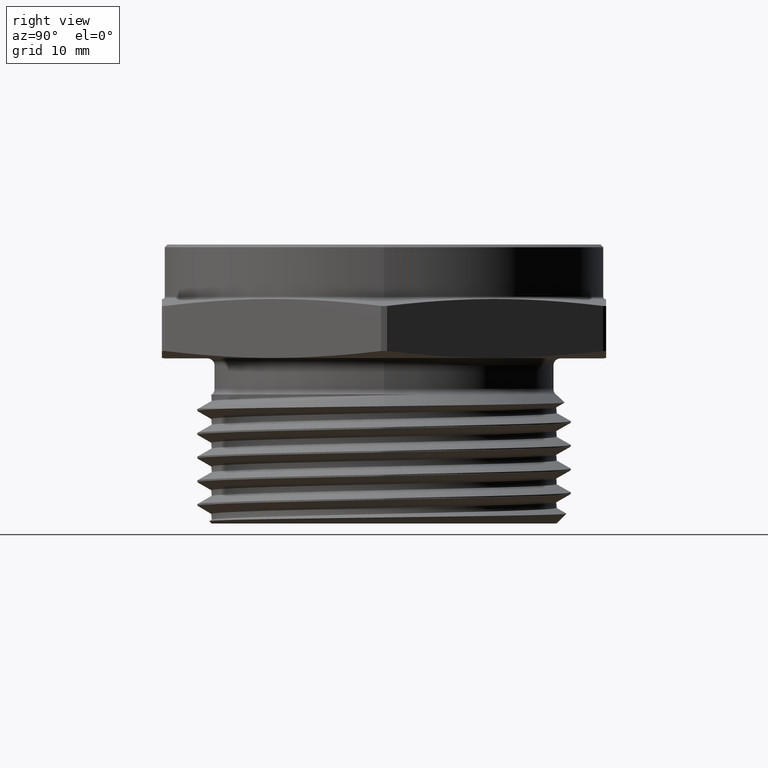
[diagram: clean part render]
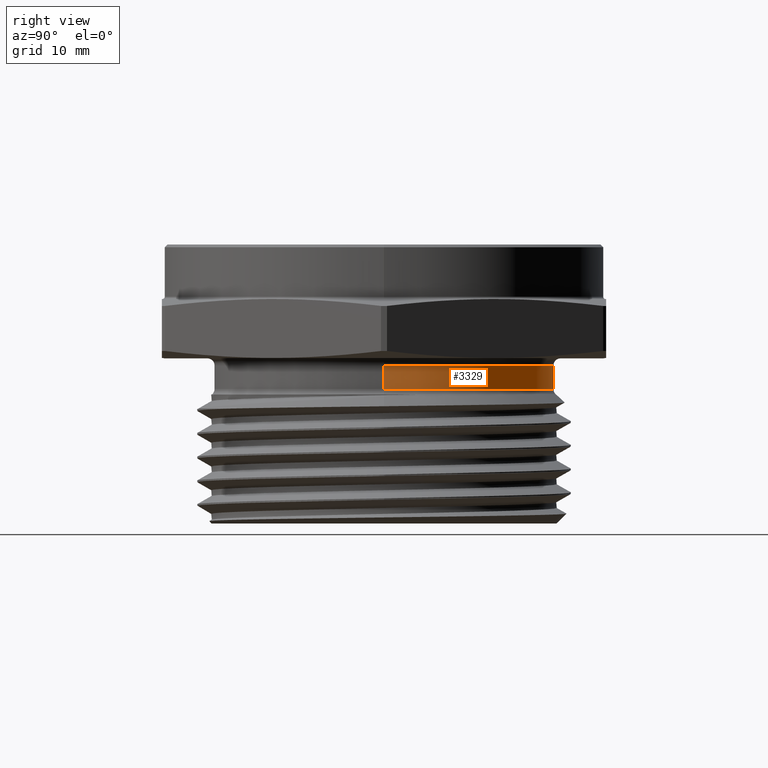
[diagram: same view with one face highlighted and labeled with its STEP entity id]
A machine part, right view. The second image highlights one B-rep face of the part: STEP entity #3329.
In plain terms, the highlighted cylindrical surface (partial cylindrical patch) has radius 15.1765 mm, axis along (-0, -0, 1).
Its self-contained STEP definition (entity closure, byte-faithful):
#865 = CARTESIAN_POINT ( 'NONE',  ( -0.5975000000000000300, 7.317264624905434600E-017, 0.0000000000000000000 ) ) ;
#875 = CARTESIAN_POINT ( 'NONE',  ( 0.0000000000000000000, 0.0000000000000000000, -0.1073223304703361800 ) ) ;
#876 = DIRECTION ( 'NONE',  ( -0.0000000000000000000, -0.0000000000000000000, 1.000000000000000000 ) ) ;
#877 = DIRECTION ( 'NONE',  ( 1.000000000000000000, 0.0000000000000000000, 0.0000000000000000000 ) ) ;
#878 = DIRECTION ( 'NONE',  ( -0.0000000000000000000, -0.0000000000000000000, 1.000000000000000000 ) ) ;
#879 = CARTESIAN_POINT ( 'NONE',  ( 0.0000000000000000000, 0.0000000000000000000, -0.02500000000000002900 ) ) ;
#880 = DIRECTION ( 'NONE',  ( -0.0000000000000000000, -0.0000000000000000000, 1.000000000000000000 ) ) ;
#881 = DIRECTION ( 'NONE',  ( 1.000000000000000000, 0.0000000000000000000, 0.0000000000000000000 ) ) ;
#882 = CARTESIAN_POINT ( 'NONE',  ( 0.5975000000000000300, 0.0000000000000000000, 0.0000000000000000000 ) ) ;
#889 = DIRECTION ( 'NONE',  ( -0.0000000000000000000, -0.0000000000000000000, 1.000000000000000000 ) ) ;
#1037 = ORIENTED_EDGE ( 'NONE', *, *, #1437, .T. ) ;
#1038 = ORIENTED_EDGE ( 'NONE', *, *, #1440, .T. ) ;
#1039 = ORIENTED_EDGE ( 'NONE', *, *, #1438, .F. ) ;
#1065 = ORIENTED_EDGE ( 'NONE', *, *, #1513, .F. ) ;
#1341 = AXIS2_PLACEMENT_3D ( 'NONE', #875, #876, #877 ) ;
#1342 = AXIS2_PLACEMENT_3D ( 'NONE', #879, #880, #881 ) ;
#1388 = AXIS2_PLACEMENT_3D ( 'NONE', #2329, #2330, #2327 ) ;
#1437 = EDGE_CURVE ( 'NONE', #1633, #1591, #2456, .T. ) ;
#1438 = EDGE_CURVE ( 'NONE', #1594, #1625, #2465, .T. ) ;
#1440 = EDGE_CURVE ( 'NONE', #1591, #1625, #2468, .T. ) ;
#1453 = EDGE_LOOP ( 'NONE', ( #1037, #1038, #1039, #1065 ) ) ;
#1513 = EDGE_CURVE ( 'NONE', #1633, #1594, #2472, .T. ) ;
#1591 = VERTEX_POINT ( 'NONE', #2210 ) ;
#1594 = VERTEX_POINT ( 'NONE', #2213 ) ;
#1625 = VERTEX_POINT ( 'NONE', #2229 ) ;
#1633 = VERTEX_POINT ( 'NONE', #2241 ) ;
#2210 = CARTESIAN_POINT ( 'NONE',  ( -0.5975000000000000300, 7.362100967769419200E-017, -0.1073223304703361800 ) ) ;
#2213 = CARTESIAN_POINT ( 'NONE',  ( 0.5975000000000000300, 0.0000000000000000000, -0.02500000000000002900 ) ) ;
#2229 = CARTESIAN_POINT ( 'NONE',  ( -0.5975000000000000300, 7.317264624905434600E-017, -0.02500000000000002900 ) ) ;
#2241 = CARTESIAN_POINT ( 'NONE',  ( 0.5975000000000000300, 0.0000000000000000000, -0.1073223304703361800 ) ) ;
#2327 = DIRECTION ( 'NONE',  ( 1.000000000000000000, 0.0000000000000000000, 0.0000000000000000000 ) ) ;
#2329 = CARTESIAN_POINT ( 'NONE',  ( 0.0000000000000000000, 0.0000000000000000000, 0.0000000000000000000 ) ) ;
#2330 = DIRECTION ( 'NONE',  ( -0.0000000000000000000, -0.0000000000000000000, 1.000000000000000000 ) ) ;
#2456 = CIRCLE ( 'NONE', #1341, 0.5975000000000000300 ) ;
#2465 = CIRCLE ( 'NONE', #1342, 0.5975000000000000300 ) ;
#2468 = LINE ( 'NONE', #865, #2470 ) ;
#2470 = VECTOR ( 'NONE', #878, 39.37007874015748100 ) ;
#2472 = LINE ( 'NONE', #882, #2474 ) ;
#2474 = VECTOR ( 'NONE', #889, 39.37007874015748100 ) ;
#2553 = FACE_OUTER_BOUND ( 'NONE', #1453, .T. ) ;
#2567 = CYLINDRICAL_SURFACE ( 'NONE', #1388, 0.5975000000000000300 ) ;
#3329 = ADVANCED_FACE ( 'NONE', ( #2553 ), #2567, .T. ) ;